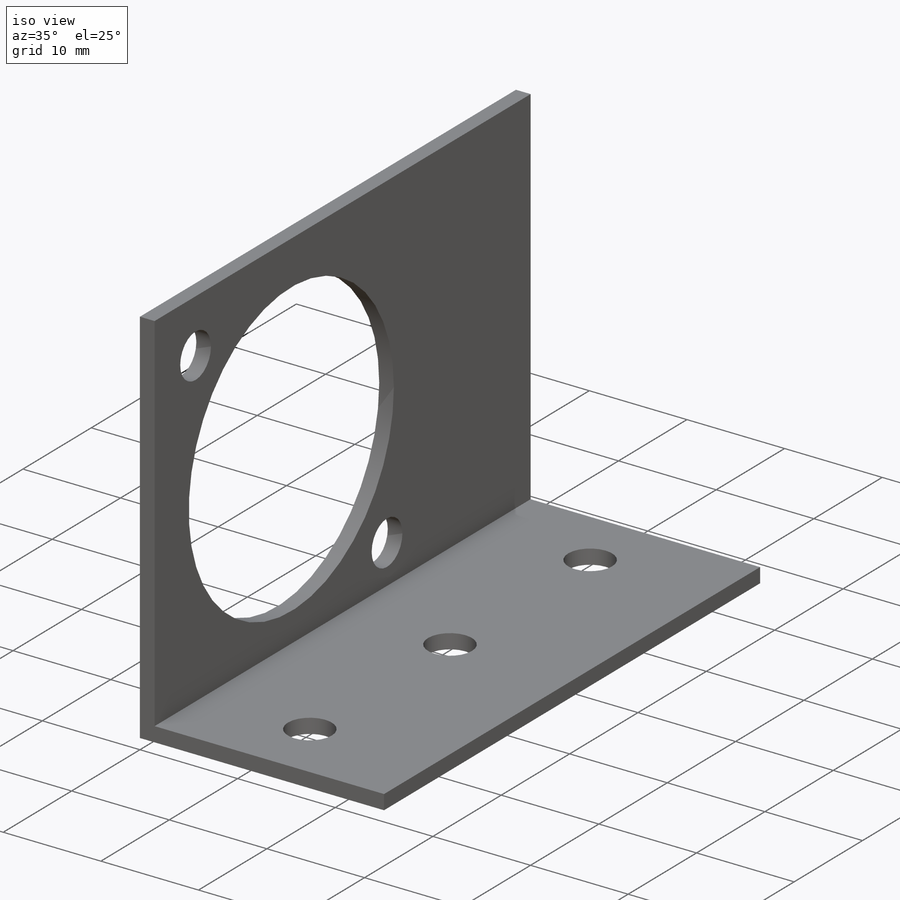
[diagram: iso view]
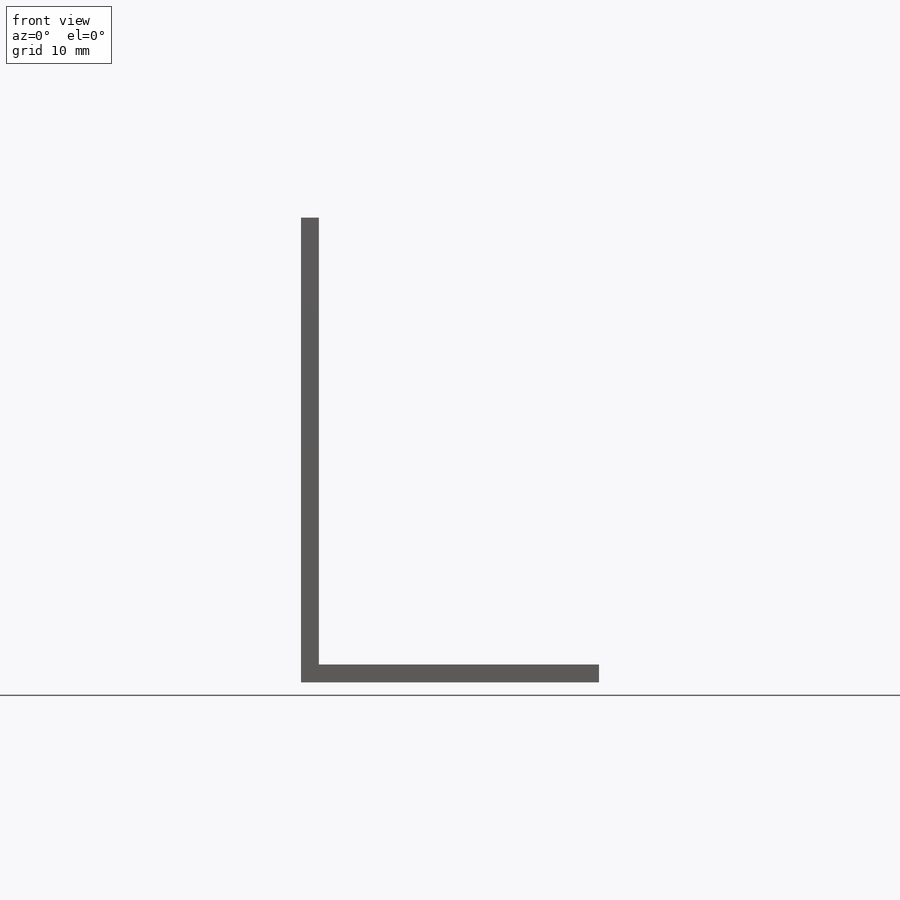
[diagram: front view]
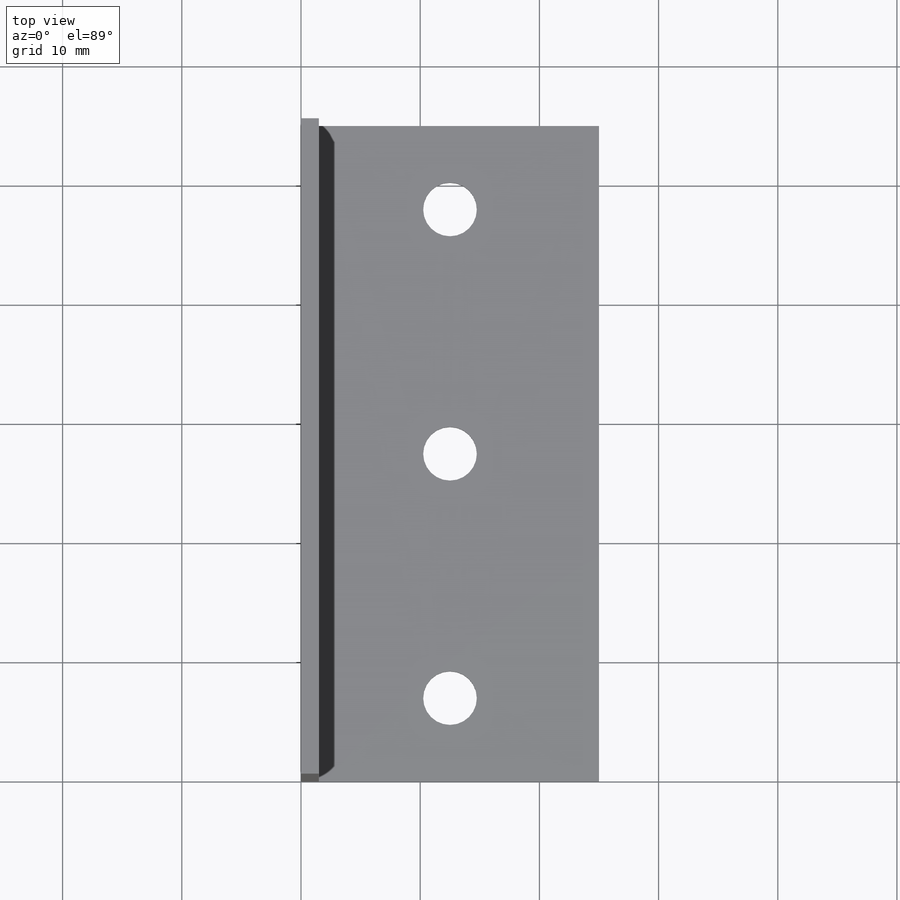
[diagram: top view]
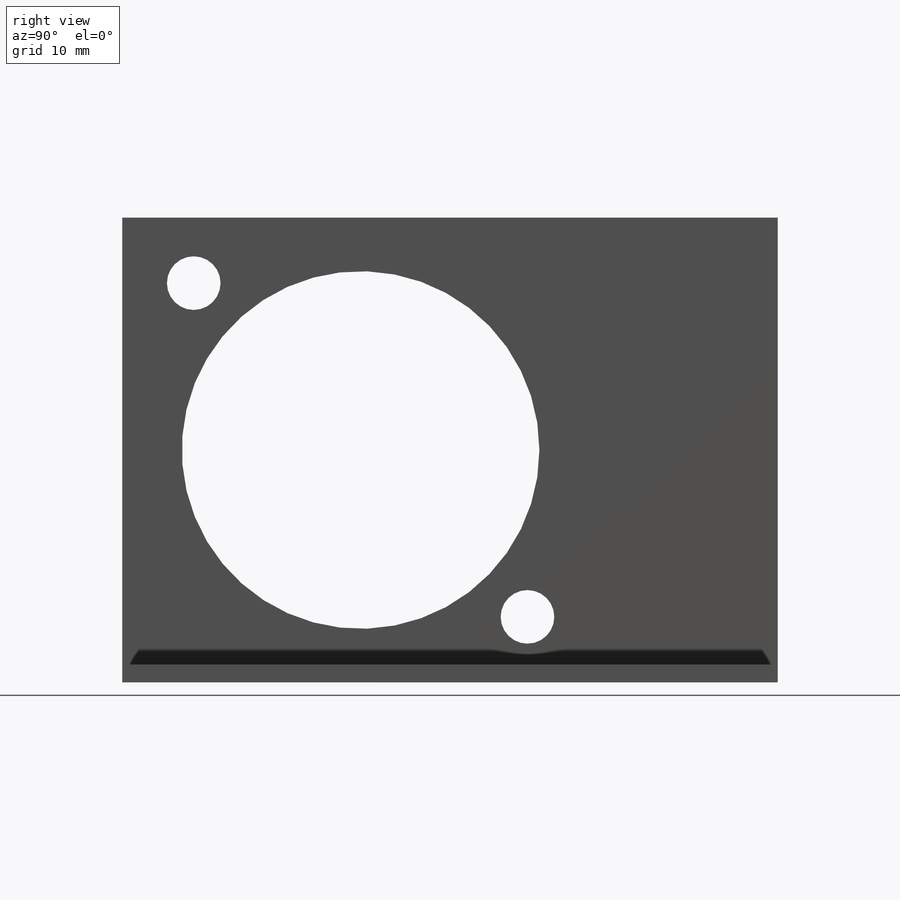
[diagram: right view]
SOLIDWORKS PART (.sldprt)
format: sldprt  version: not decoded by parser v0  size: 262,144 bytes
history: native  units: mm
features: sketch x9, plane x3, hole x3, material x1 (+13 scaffold rows collapsed)
feature tree (29):
  scaffold x13  (default folders/planes/origin — collapsed)
  material  "Matériau <non spécifié>"
  plane  "Plan de face"
  plane  "Plan de dessus"
  plane  "Plan de droite"
  sketch  "Esquisse1"  dims[c1.D1=39.0mm c1.D2=25.0mm c2.D1=55.0mm c2.D5=1.5mm c2.D6=1.0mm c2.D7=5.0mm]
  sketch  "Esquisse2"  dims[D1=7.0mm D2=7.0mm D3=27.5mm D4=12.5mm D5=12.5mm D6=12.5mm]
  hole  "Dégagement M41"  Diameter=4.5mm Depth=1.5mm
  sketch  "Esquisse8"
  sketch  "Esquisse9"  dims[hole-wizard template sketch: 60 standard entries collapsed; hole parameters kept: c18.Profondeur du perçage jusqu'au prochain=1.5mm]
  sketch  "Esquisse10"  dims[D1=19.5mm D2=20.0mm D3=6.0mm D4=5.5mm D5=33.5mm D6=34.0mm D7=~19.79899mm]
  hole  "Dégagement M42"  Diameter=4.5mm Depth=1.5mm
  sketch  "Esquisse12"
  sketch  "Esquisse11"  dims[hole-wizard template sketch: 60 standard entries collapsed; hole parameters kept: c18.Profondeur du perçage jusqu'au prochain=1.5mm]
  hole  "Dégagement M271"  Diameter=30mm Depth=1.5mm
  sketch  "Esquisse14"
  sketch  "Esquisse13"  dims[hole-wizard template sketch: 46 standard entries collapsed; hole parameters kept: c15.Diamètre du perçage=30.0mm c15.Profondeur du perçage=1.5mm c15.D3=~14.816244mm c15.Angle de pointe=118.0deg]
decode coverage: 9 of 12 modeling features carry decoded parameters
note: ~ marks probable driven/reference dimensions
note: suppression state not decoded; provenance and decode notes live in map.json
